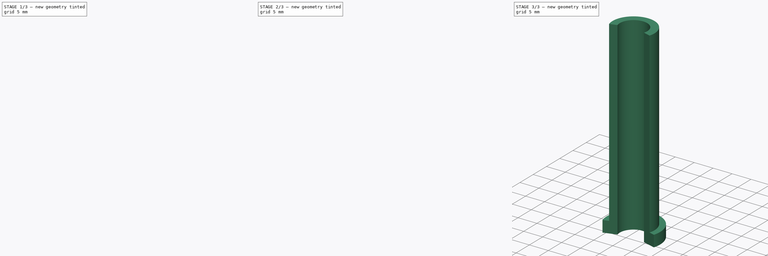
[diagram: build sequence overview — one tinted view per stage of 3, left to right]
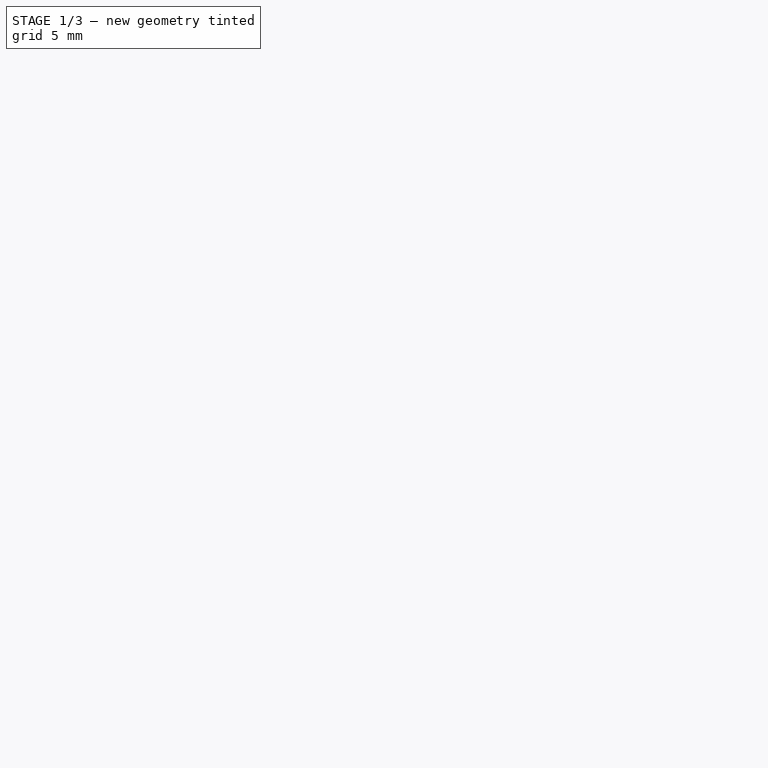
[diagram: stage 1 of 3 — iso view after this stage's code; geometry added in this stage tinted green]
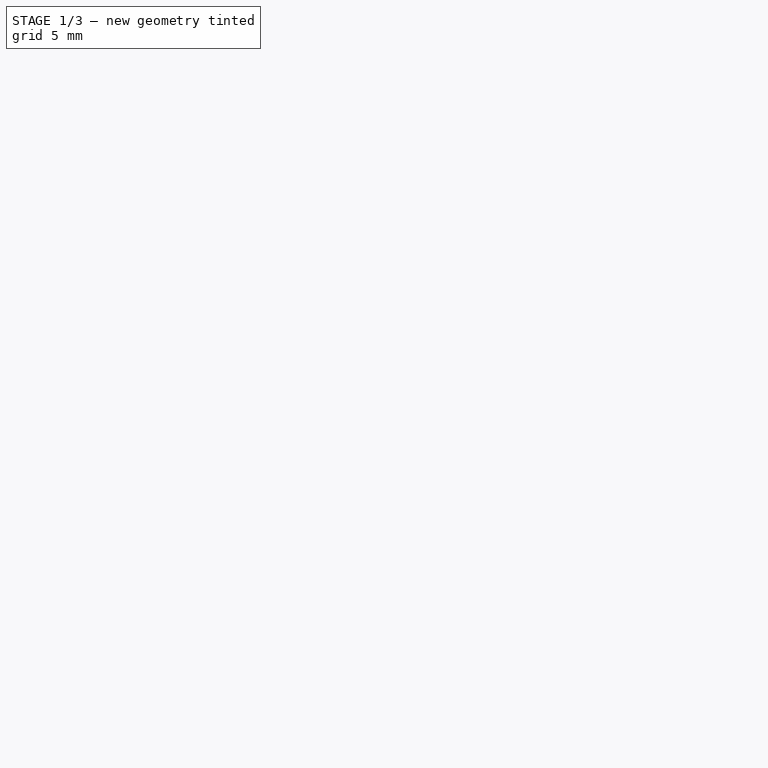
[diagram: stage 1 of 3 — front view after this stage's code; geometry added in this stage tinted green]
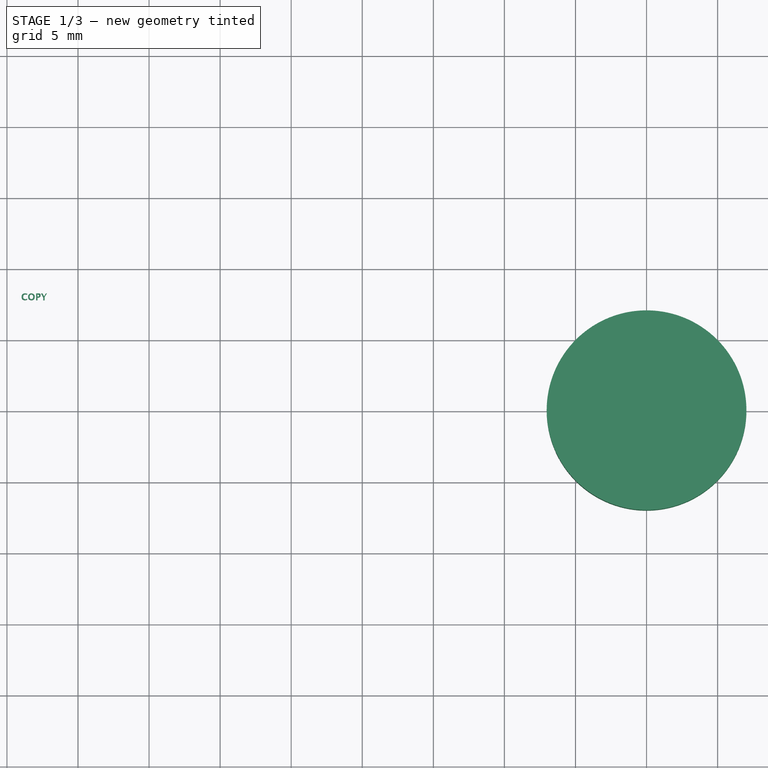
[diagram: stage 1 of 3 — top view after this stage's code; geometry added in this stage tinted green]
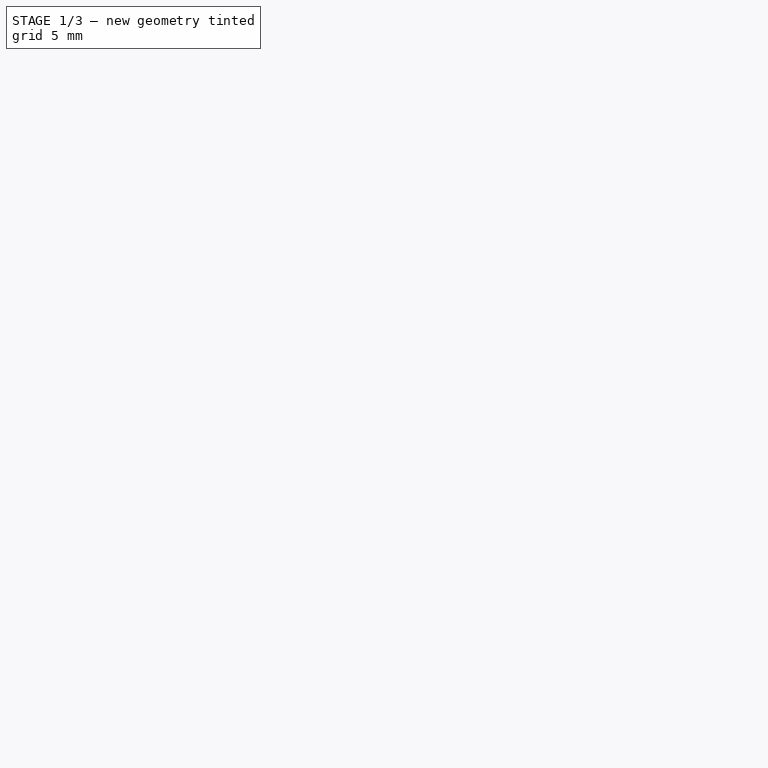
[diagram: stage 1 of 3 — right view after this stage's code; geometry added in this stage tinted green]
FCSTD DOCUMENT  (FreeCAD 0.18R4 (GitTag))
Label: Reducer -copy
License: All rights reserved
LicenseURL: http://en.wikipedia.org/wiki/All_rights_reserved
objects: Sketcher::SketchObject×4, PartDesign::Pad×2, PartDesign::Pocket×2, PartDesign::Body×1, Part::Part2DObjectPython×1, Part::Extrusion×1, Part::Cut×1
note: 16 computed .brp shape members not serialized (recipe doc carries the construction recipe); baked Part::Feature solids carry a one-line shape summary decoded from their .brp

FEATURE [Sketcher::SketchObject] Sketch023
  MapMode = 5
  Support = -> [XY_Plane004]
  sketch-geometry (1):
    g0: Circle CenterX=0 CenterY=0 CenterZ=0 NormalX=0 NormalY=0 NormalZ=1 AngleXU=0 Radius=7.02738
  constraints (1):
    c: Coincident(g0,g-1)
FEATURE [PartDesign::Pad] Pad007
  Length = 3
  Length2 = 100
  Profile = -> Sketch023
  Type = 0
FEATURE [PartDesign::Body] Body004  label="Reducer short"
  Group = -> [Sketch023,Pad007,Sketch024,Pad008,Sketch025,Pocket004,Sketch026,Pocket005]
  Origin = -> Origin004
  Placement = pos=(-43,0,214) rot=(1,0,0;3.14159rad)
  Tip = -> Pocket005
FEATURE [Part::Part2DObjectPython] ShapeString001  # Draft 2D object (typed FeaturePython)
  FontFile = C:/Program Files (x86)/Arduino/java/lib/fonts/LucidaSansDemiBold.ttf
  Size = 0.5
  String = COPY
  Tracking = 0
FEATURE [Part::Extrusion] Extrude
  Base = -> ShapeString001
  Dir = (0,0,1)
  DirMode = 2
  FaceMakerClass = Part::FaceMakerBullseye
  LengthFwd = 0.75
  LengthRev = 0
  Placement = pos=(-44,4,216.5) rot=(0,0,1;0rad)
  Solid = false
  Symmetric = false
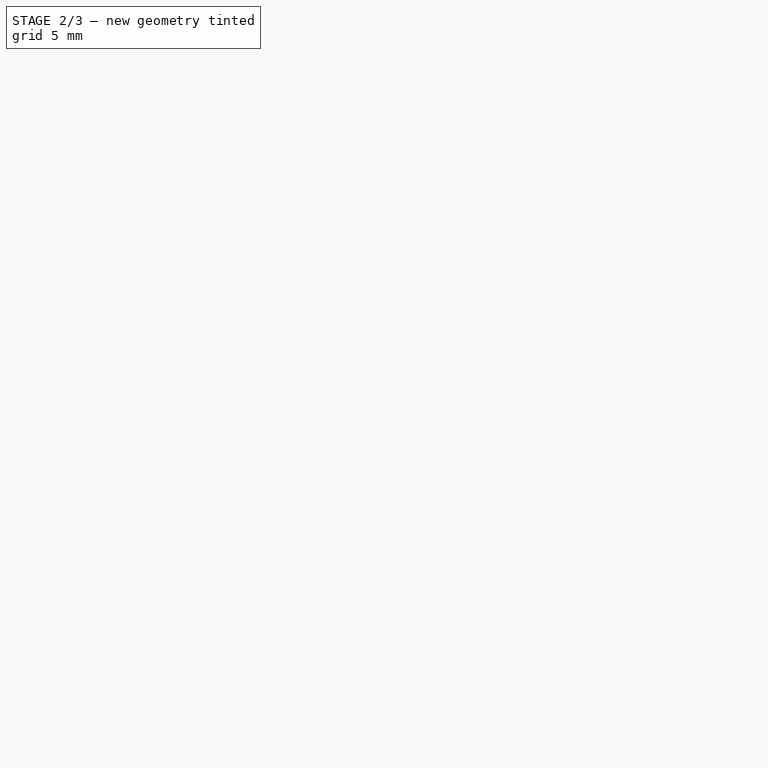
[diagram: stage 2 of 3 — iso view after this stage's code; geometry added in this stage tinted green]
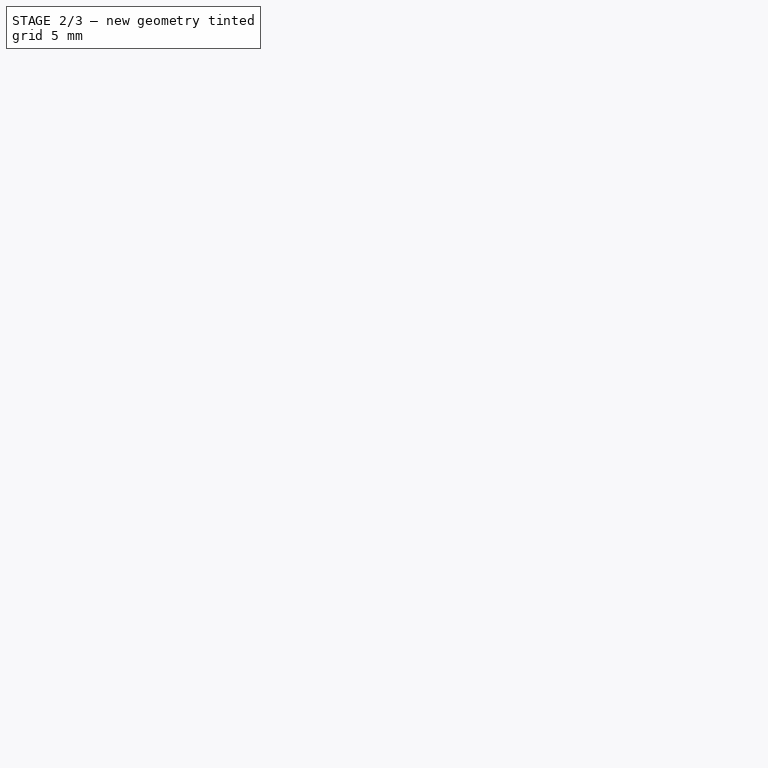
[diagram: stage 2 of 3 — front view after this stage's code; geometry added in this stage tinted green]
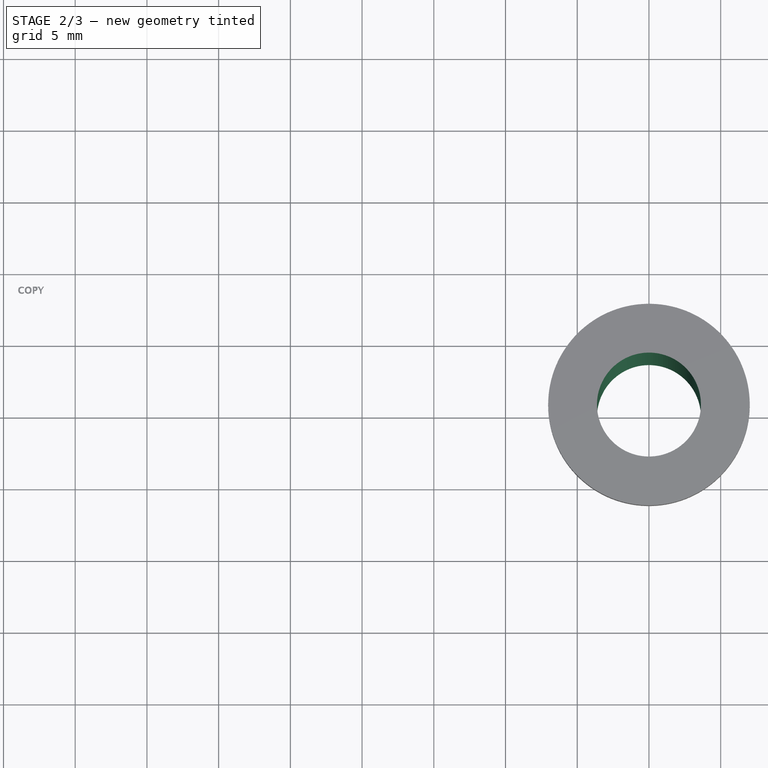
[diagram: stage 2 of 3 — top view after this stage's code; geometry added in this stage tinted green]
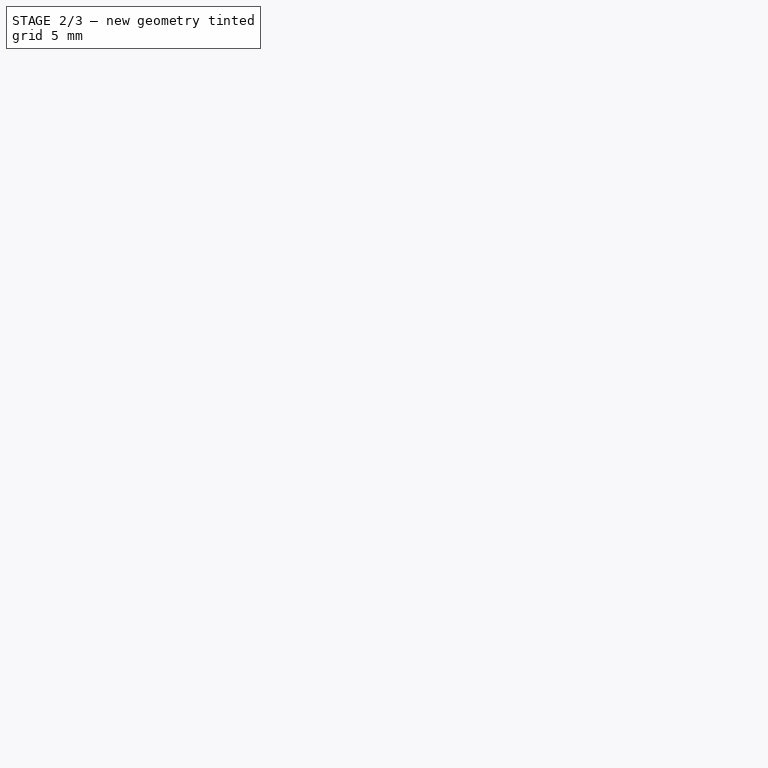
[diagram: stage 2 of 3 — right view after this stage's code; geometry added in this stage tinted green]
FEATURE [Sketcher::SketchObject] Sketch024
  MapMode = 5
  Placement = pos=(0,0,3) rot=(0,0,1;0rad)
  Support = -> [Pad007]
  sketch-geometry (1):
    g0: Circle CenterX=0 CenterY=0 CenterZ=0 NormalX=0 NormalY=0 NormalZ=1 AngleXU=0 Radius=5.53648
  constraints (1):
    c: Coincident(g0,g-1)
FEATURE [PartDesign::Pad] Pad008
  BaseFeature = -> Pad007
  Length = 50
  Length2 = 100
  Profile = -> Sketch024
  Reversed = true
  Type = 0
FEATURE [Sketcher::SketchObject] Sketch025
  MapMode = 5
  Placement = pos=(0,0,-47) rot=(1,0,0;3.14159rad)
  Support = -> [Pad008]
  sketch-geometry (1):
    g0: Circle CenterX=0 CenterY=0 CenterZ=0 NormalX=0 NormalY=0 NormalZ=1 AngleXU=0 Radius=3.6227
  constraints (1):
    c: Coincident(g0,g-1)
FEATURE [PartDesign::Pocket] Pocket004
  BaseFeature = -> Pad008
  Length = 5
  Length2 = 100
  Profile = -> Sketch025
  Type = 1
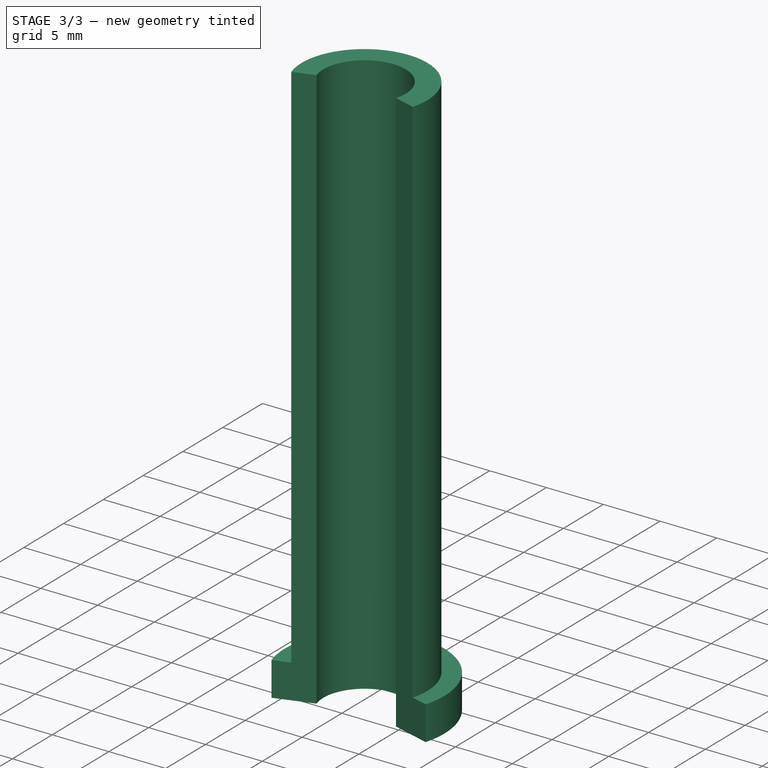
[diagram: stage 3 of 3 — iso view after this stage's code; geometry added in this stage tinted green]
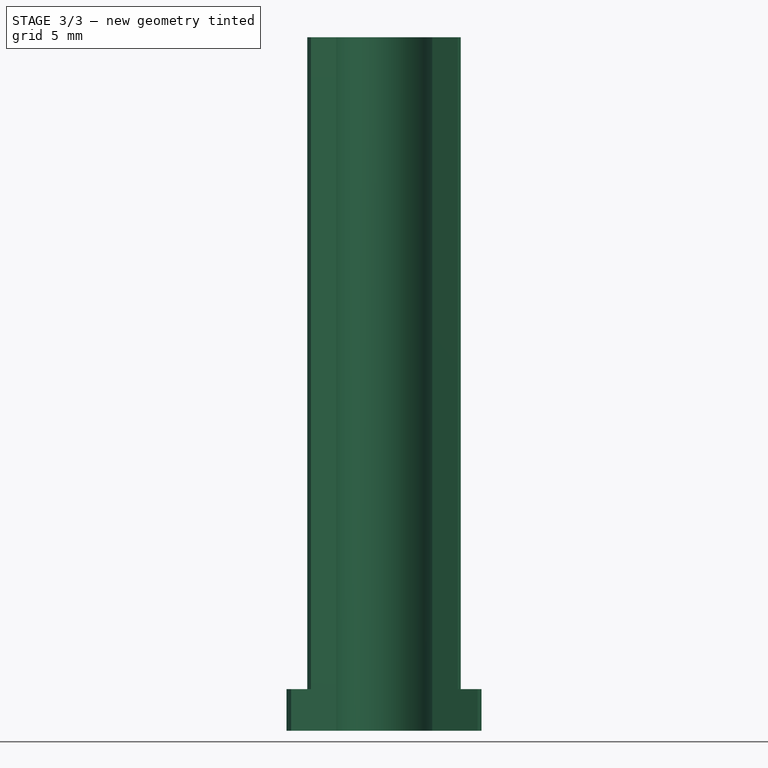
[diagram: stage 3 of 3 — front view after this stage's code; geometry added in this stage tinted green]
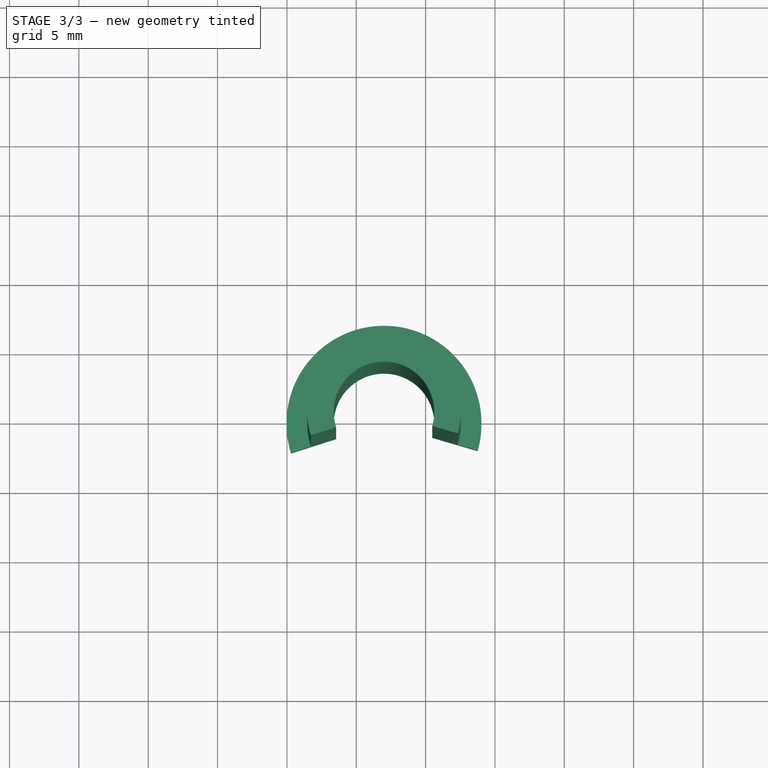
[diagram: stage 3 of 3 — top view after this stage's code; geometry added in this stage tinted green]
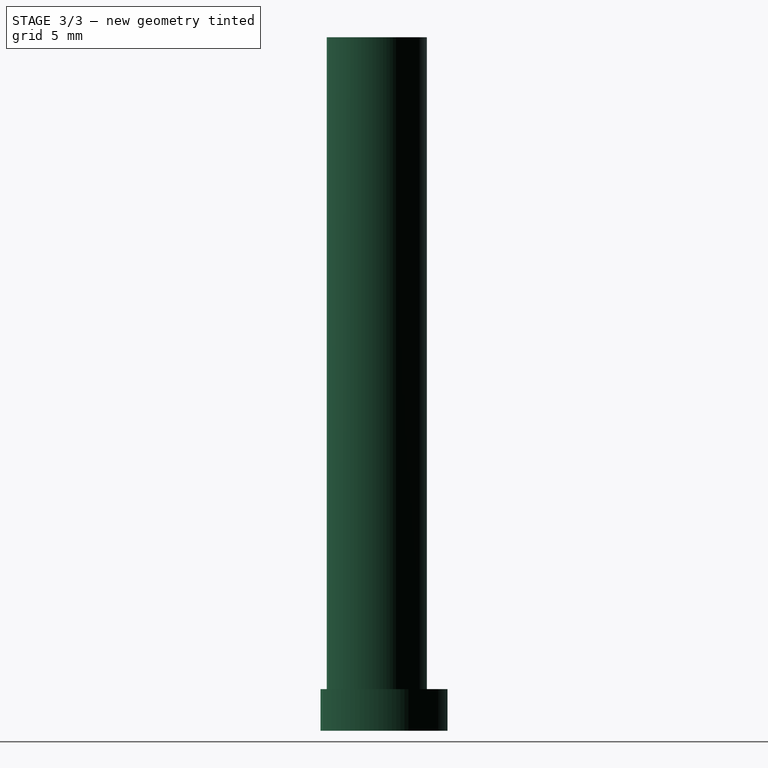
[diagram: stage 3 of 3 — right view after this stage's code; geometry added in this stage tinted green]
FEATURE [Sketcher::SketchObject] Sketch026
  MapMode = 5
  Placement = pos=(0,0,3) rot=(0,0,1;0rad)
  Support = -> [Pocket004]
  sketch-geometry (3):
    g0: LineSegment StartX=0 StartY=0 StartZ=0 EndX=-6.98983 EndY=2.23315 EndZ=0
    g1: LineSegment StartX=0 StartY=0 StartZ=0 EndX=7.04553 EndY=2.05066 EndZ=0
    g2: ArcOfCircle CenterX=0 CenterY=0 CenterZ=0 NormalX=0 NormalY=0 NormalZ=1 AngleXU=0 Radius=7.3379 StartAngle=0.283233 EndAngle=2.83236
  constraints (5):
    c: Coincident(g0,g-1)
    c: Coincident(g1,g0)
    c: Coincident(g2,g0)
    c: Coincident(g2,g0)
    c: Coincident(g2,g1)
FEATURE [PartDesign::Pocket] Pocket005
  BaseFeature = -> Pocket004
  Length = 94
  Length2 = 100
  Profile = -> Sketch026
  Type = 1
FEATURE [Part::Cut] Cut
  Base = -> Body004
  Tool = -> Extrude
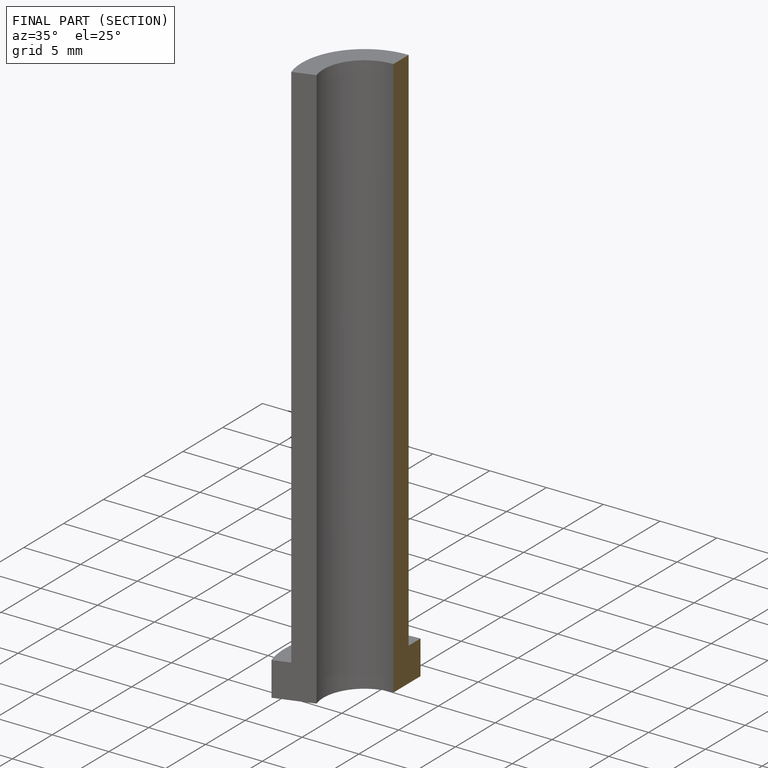
[diagram: finished part — half-section view (interior)]
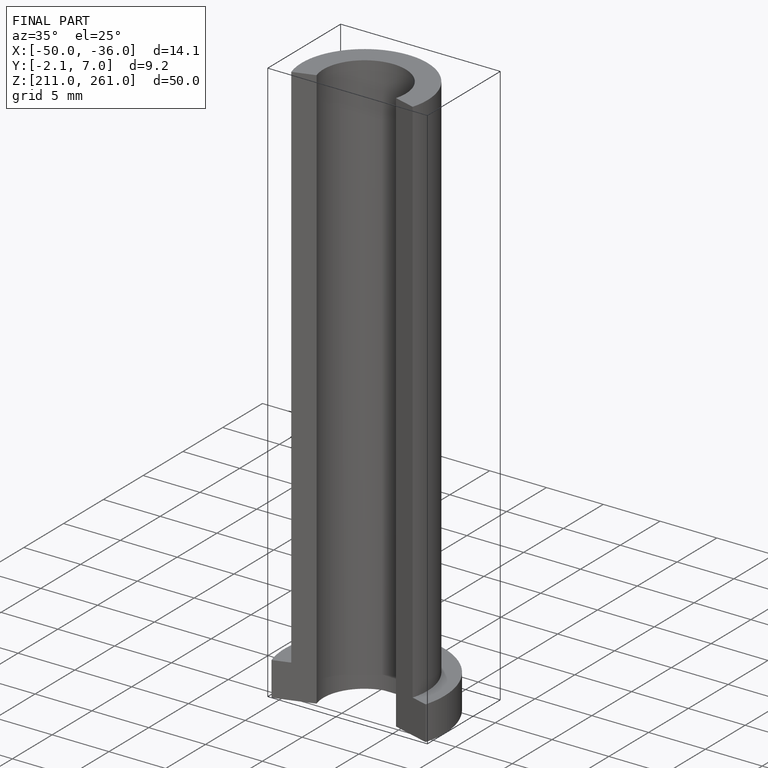
[diagram: finished part — iso view with bounding-box wireframe]
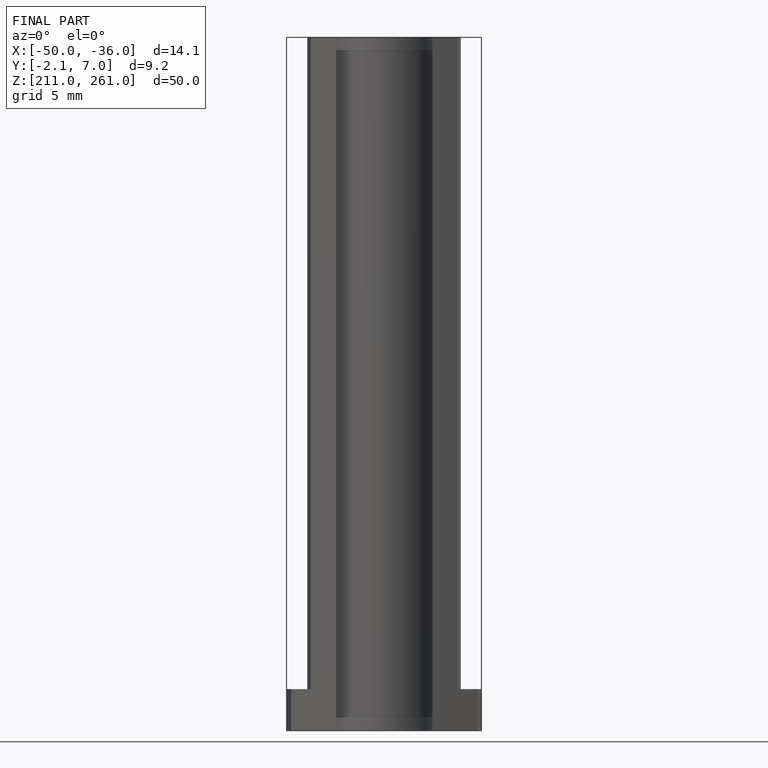
[diagram: finished part — front view with bounding-box wireframe]
